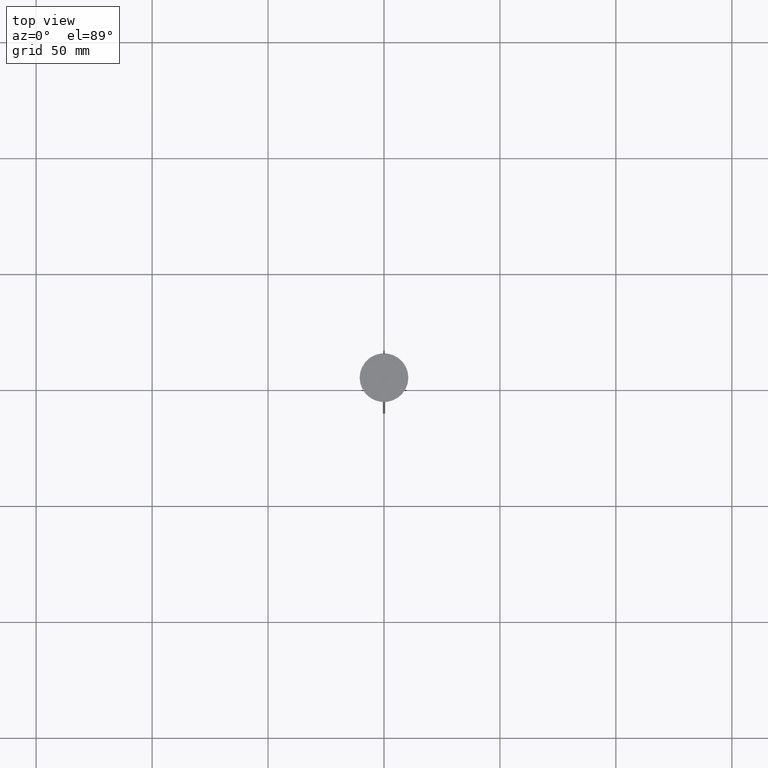
[diagram: clean part render]
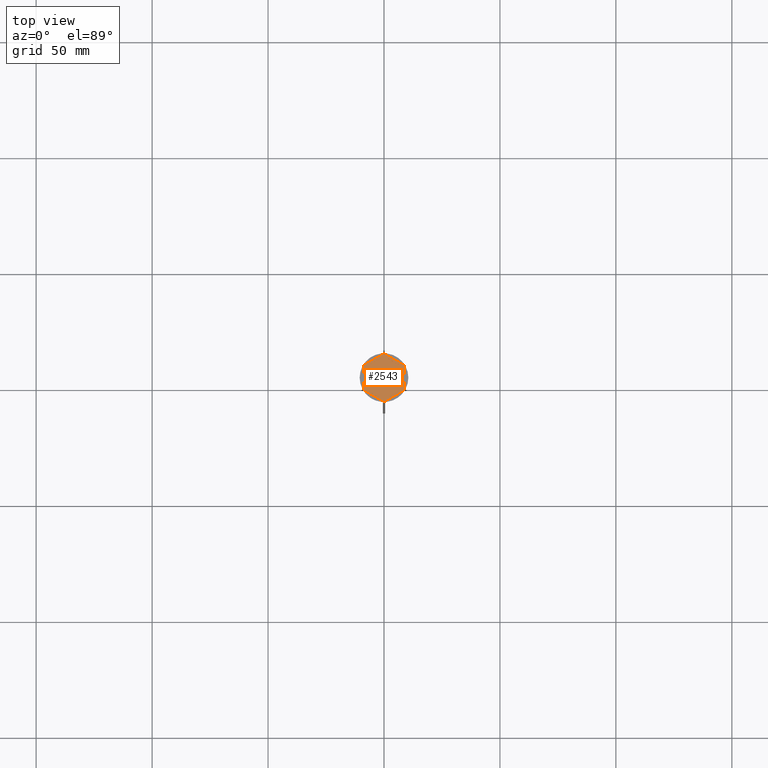
[diagram: same view with one face highlighted and labeled with its STEP entity id]
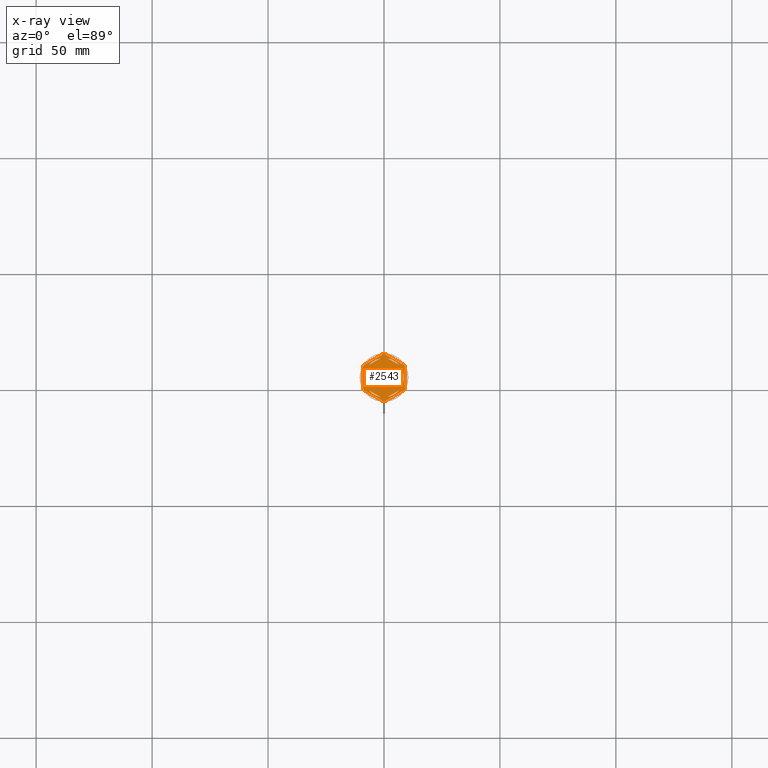
[diagram: x-ray of the same camera — body ghosted, the highlighted face saturated]
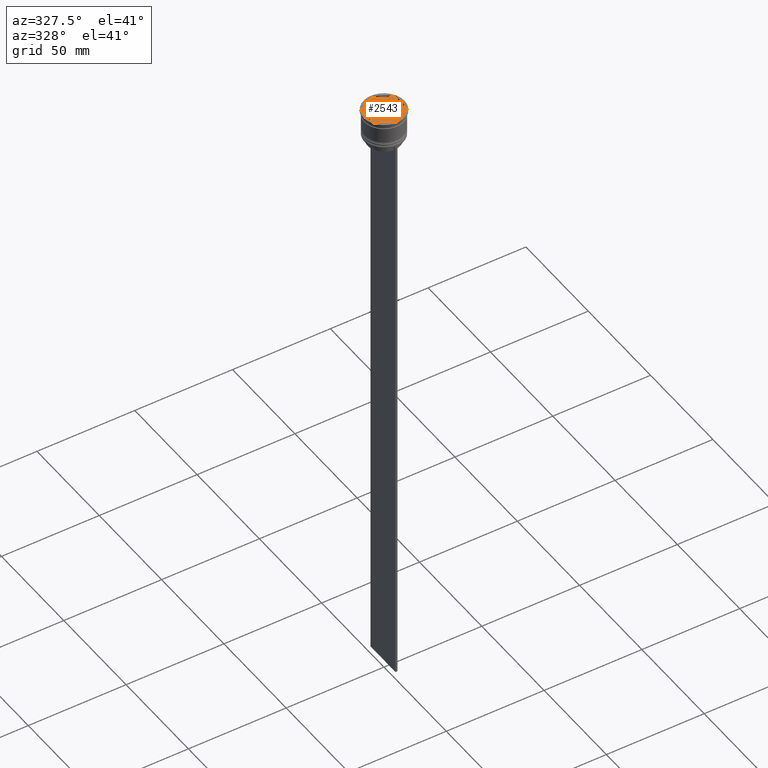
[diagram: same view with one face highlighted and labeled with its STEP entity id]
A machine part, top view. The second image highlights one B-rep face of the part: STEP entity #2543.
The next image is the same camera in x-ray: the body ghosted, the highlighted face saturated — about 0% of this face is hidden behind the body in this view.
A second angle (auxiliary view) of the same face is appended — the face is thin or edge-on in the first view.
In plain terms, the highlighted planar face has unit normal (0, 0, 1).
Its self-contained STEP definition (entity closure, byte-faithful):
#15 = VECTOR ( 'NONE', #155, 1000.000000000000000 ) ;
#35 = FACE_BOUND ( 'NONE', #1117, .T. ) ;
#37 = VERTEX_POINT ( 'NONE', #2377 ) ;
#46 = ORIENTED_EDGE ( 'NONE', *, *, #1420, .F. ) ;
#58 = ORIENTED_EDGE ( 'NONE', *, *, #1595, .T. ) ;
#68 = CARTESIAN_POINT ( 'NONE',  ( -9.000000000000001776, 4.799999999999988276, -1.000000000000000000 ) ) ;
#81 = VERTEX_POINT ( 'NONE', #173 ) ;
#94 = CIRCLE ( 'NONE', #688, 8.500000000000000000 ) ;
#101 = EDGE_CURVE ( 'NONE', #1579, #37, #117, .T. ) ;
#102 = CIRCLE ( 'NONE', #263, 8.500000000000000000 ) ;
#117 = LINE ( 'NONE', #2311, #187 ) ;
#130 = CARTESIAN_POINT ( 'NONE',  ( 8.656921938165297092, -5.394228634059953009, -1.000000000000000000 ) ) ;
#151 = CIRCLE ( 'NONE', #265, 10.19999999999999574 ) ;
#155 = DIRECTION ( 'NONE',  ( -0.8660254037844385966, -0.5000000000000001110, 0.000000000000000000 ) ) ;
#163 = CARTESIAN_POINT ( 'NONE',  ( 0.000000000000000000, 0.000000000000000000, -1.000000000000000000 ) ) ;
#166 = CARTESIAN_POINT ( 'NONE',  ( 0.000000000000000000, 10.39230484541326582, -1.000000000000000000 ) ) ;
#173 = CARTESIAN_POINT ( 'NONE',  ( -6.487468592766552078, -5.492062568641001619, -1.000000000000000888 ) ) ;
#187 = VECTOR ( 'NONE', #227, 1000.000000000000000 ) ;
#194 = CIRCLE ( 'NONE', #1704, 10.19999999999999574 ) ;
#206 = VERTEX_POINT ( 'NONE', #2444 ) ;
#218 = EDGE_CURVE ( 'NONE', #2053, #307, #724, .T. ) ;
#225 = AXIS2_PLACEMENT_3D ( 'NONE', #1634, #248, #2540 ) ;
#227 = DIRECTION ( 'NONE',  ( -1.877893248421449036E-16, -1.000000000000000000, 0.000000000000000000 ) ) ;
#233 = EDGE_CURVE ( 'NONE', #417, #1099, #1114, .T. ) ;
#248 = DIRECTION ( 'NONE',  ( -0.000000000000000000, -0.000000000000000000, -1.000000000000000000 ) ) ;
#263 = AXIS2_PLACEMENT_3D ( 'NONE', #2485, #1453, #2496 ) ;
#265 = AXIS2_PLACEMENT_3D ( 'NONE', #163, #990, #1612 ) ;
#269 = DIRECTION ( 'NONE',  ( -0.8660254037844387076, -0.4999999999999998335, 0.000000000000000000 ) ) ;
#291 = ORIENTED_EDGE ( 'NONE', *, *, #2210, .F. ) ;
#292 = ORIENTED_EDGE ( 'NONE', *, *, #582, .F. ) ;
#298 = CIRCLE ( 'NONE', #1828, 10.19999999999999574 ) ;
#307 = VERTEX_POINT ( 'NONE', #2228 ) ;
#326 = VERTEX_POINT ( 'NONE', #2017 ) ;
#339 = ORIENTED_EDGE ( 'NONE', *, *, #722, .F. ) ;
#340 = CARTESIAN_POINT ( 'NONE',  ( 9.000000000000001776, -5.196152422706632024, -1.000000000000000000 ) ) ;
#344 = DIRECTION ( 'NONE',  ( 1.000000000000000000, 0.000000000000000000, 0.000000000000000000 ) ) ;
#350 = AXIS2_PLACEMENT_3D ( 'NONE', #2464, #626, #2287 ) ;
#355 = EDGE_CURVE ( 'NONE', #1530, #307, #1381, .T. ) ;
#417 = VERTEX_POINT ( 'NONE', #2059 ) ;
#448 = ORIENTED_EDGE ( 'NONE', *, *, #975, .F. ) ;
#464 = DIRECTION ( 'NONE',  ( 0.000000000000000000, 0.000000000000000000, 1.000000000000000000 ) ) ;
#500 = CARTESIAN_POINT ( 'NONE',  ( 0.000000000000000000, 0.000000000000000000, -1.000000000000000000 ) ) ;
#504 = VERTEX_POINT ( 'NONE', #1664 ) ;
#521 = VERTEX_POINT ( 'NONE', #68 ) ;
#530 = DIRECTION ( 'NONE',  ( -0.000000000000000000, -0.000000000000000000, -1.000000000000000000 ) ) ;
#534 = ORIENTED_EDGE ( 'NONE', *, *, #2542, .F. ) ;
#542 = CARTESIAN_POINT ( 'NONE',  ( -8.000000000000000000, -2.872281323269016085, -1.000000000000000888 ) ) ;
#557 = CIRCLE ( 'NONE', #944, 8.500000000000000000 ) ;
#571 = EDGE_CURVE ( 'NONE', #769, #823, #557, .T. ) ;
#582 = EDGE_CURVE ( 'NONE', #2438, #2016, #298, .T. ) ;
#609 = AXIS2_PLACEMENT_3D ( 'NONE', #1452, #1901, #2178 ) ;
#615 = FACE_BOUND ( 'NONE', #1691, .T. ) ;
#617 = ORIENTED_EDGE ( 'NONE', *, *, #218, .F. ) ;
#623 = ORIENTED_EDGE ( 'NONE', *, *, #1320, .F. ) ;
#626 = DIRECTION ( 'NONE',  ( 0.000000000000000000, 0.000000000000000000, 1.000000000000000000 ) ) ;
#643 = VECTOR ( 'NONE', #670, 1000.000000000000000 ) ;
#651 = VECTOR ( 'NONE', #269, 1000.000000000000114 ) ;
#659 = ORIENTED_EDGE ( 'NONE', *, *, #2511, .T. ) ;
#660 = LINE ( 'NONE', #1063, #2222 ) ;
#670 = DIRECTION ( 'NONE',  ( 0.000000000000000000, -1.000000000000000000, 0.000000000000000000 ) ) ;
#688 = AXIS2_PLACEMENT_3D ( 'NONE', #1416, #2020, #1650 ) ;
#696 = VERTEX_POINT ( 'NONE', #1171 ) ;
#701 = LINE ( 'NONE', #2558, #1393 ) ;
#722 = EDGE_CURVE ( 'NONE', #1196, #504, #194, .T. ) ;
#724 = CIRCLE ( 'NONE', #225, 10.19999999999999574 ) ;
#727 = EDGE_CURVE ( 'NONE', #521, #326, #151, .T. ) ;
#740 = CARTESIAN_POINT ( 'NONE',  ( 9.000000000000001776, 5.196152422706632912, -1.000000000000000000 ) ) ;
#769 = VERTEX_POINT ( 'NONE', #1363 ) ;
#781 = ORIENTED_EDGE ( 'NONE', *, *, #571, .F. ) ;
#821 = CIRCLE ( 'NONE', #609, 10.19999999999999574 ) ;
#823 = VERTEX_POINT ( 'NONE', #542 ) ;
#825 = AXIS2_PLACEMENT_3D ( 'NONE', #2112, #2530, #936 ) ;
#836 = CARTESIAN_POINT ( 'NONE',  ( 1.512531407233448366, 8.364343891910017703, -1.000000000000000888 ) ) ;
#847 = ORIENTED_EDGE ( 'NONE', *, *, #1104, .F. ) ;
#860 = VECTOR ( 'NONE', #1336, 1000.000000000000000 ) ;
#911 = CARTESIAN_POINT ( 'NONE',  ( 0.000000000000000000, 0.000000000000000000, -1.000000000000000000 ) ) ;
#929 = CARTESIAN_POINT ( 'NONE',  ( -8.673617379884035472E-16, -9.237604307034013473, -1.000000000000000888 ) ) ;
#936 = DIRECTION ( 'NONE',  ( 1.000000000000000000, 0.000000000000000000, 0.000000000000000000 ) ) ;
#944 = AXIS2_PLACEMENT_3D ( 'NONE', #911, #1501, #1534 ) ;
#962 = DIRECTION ( 'NONE',  ( 0.000000000000000000, 1.000000000000000000, 0.000000000000000000 ) ) ;
#975 = EDGE_CURVE ( 'NONE', #1530, #2545, #821, .T. ) ;
#990 = DIRECTION ( 'NONE',  ( -0.000000000000000000, -0.000000000000000000, -1.000000000000000000 ) ) ;
#1019 = FACE_BOUND ( 'NONE', #2189, .T. ) ;
#1028 = CARTESIAN_POINT ( 'NONE',  ( 0.000000000000000000, 0.000000000000000000, -1.000000000000000000 ) ) ;
#1043 = EDGE_CURVE ( 'NONE', #1755, #2566, #1783, .T. ) ;
#1056 = EDGE_CURVE ( 'NONE', #1768, #206, #2534, .T. ) ;
#1063 = CARTESIAN_POINT ( 'NONE',  ( -9.000000000000001776, -5.196152422706632912, -1.000000000000000000 ) ) ;
#1099 = VERTEX_POINT ( 'NONE', #2399 ) ;
#1104 = EDGE_CURVE ( 'NONE', #696, #81, #2126, .T. ) ;
#1105 = CARTESIAN_POINT ( 'NONE',  ( 0.000000000000000000, 0.000000000000000000, -1.000000000000000000 ) ) ;
#1112 = CIRCLE ( 'NONE', #1708, 8.500000000000000000 ) ;
#1114 = CIRCLE ( 'NONE', #2378, 10.19999999999999574 ) ;
#1116 = VECTOR ( 'NONE', #2173, 1000.000000000000000 ) ;
#1117 = EDGE_LOOP ( 'NONE', ( #46, #2065 ) ) ;
#1143 = DIRECTION ( 'NONE',  ( -0.8660254037844385966, 0.5000000000000000000, 0.000000000000000000 ) ) ;
#1144 = LINE ( 'NONE', #1972, #860 ) ;
#1149 = CARTESIAN_POINT ( 'NONE',  ( 6.487468592766552078, 5.492062568641001619, -1.000000000000000888 ) ) ;
#1169 = CIRCLE ( 'NONE', #350, 8.500000000000000000 ) ;
#1171 = CARTESIAN_POINT ( 'NONE',  ( -1.512531407233448366, -8.364343891910017703, -1.000000000000000888 ) ) ;
#1178 = EDGE_LOOP ( 'NONE', ( #2491, #1224 ) ) ;
#1182 = ORIENTED_EDGE ( 'NONE', *, *, #1043, .F. ) ;
#1196 = VERTEX_POINT ( 'NONE', #1206 ) ;
#1197 = EDGE_CURVE ( 'NONE', #2510, #1811, #94, .T. ) ;
#1206 = CARTESIAN_POINT ( 'NONE',  ( 0.3430780618347059052, -10.19422863405994306, -1.000000000000000000 ) ) ;
#1224 = ORIENTED_EDGE ( 'NONE', *, *, #2314, .F. ) ;
#1276 = CARTESIAN_POINT ( 'NONE',  ( -6.487468592766553854, 5.492062568640999842, -1.000000000000000888 ) ) ;
#1280 = EDGE_CURVE ( 'NONE', #417, #504, #660, .T. ) ;
#1282 = DIRECTION ( 'NONE',  ( 0.8660254037844385966, -0.4999999999999999445, 0.000000000000000000 ) ) ;
#1320 = EDGE_CURVE ( 'NONE', #206, #1768, #1112, .T. ) ;
#1336 = DIRECTION ( 'NONE',  ( 0.8660254037844385966, 0.5000000000000001110, 0.000000000000000000 ) ) ;
#1363 = CARTESIAN_POINT ( 'NONE',  ( -8.500000000000000000, 0.000000000000000000, -1.000000000000000000 ) ) ;
#1370 = CARTESIAN_POINT ( 'NONE',  ( -8.000000000000000000, -4.618802153517006737, -1.000000000000000888 ) ) ;
#1378 = EDGE_CURVE ( 'NONE', #521, #1099, #2074, .T. ) ;
#1381 = LINE ( 'NONE', #740, #1603 ) ;
#1382 = LINE ( 'NONE', #166, #15 ) ;
#1392 = CARTESIAN_POINT ( 'NONE',  ( 9.000000000000001776, -4.799999999999988276, -1.000000000000000000 ) ) ;
#1393 = VECTOR ( 'NONE', #1282, 1000.000000000000114 ) ;
#1407 = ORIENTED_EDGE ( 'NONE', *, *, #727, .F. ) ;
#1416 = CARTESIAN_POINT ( 'NONE',  ( 0.000000000000000000, 0.000000000000000000, -1.000000000000000000 ) ) ;
#1420 = EDGE_CURVE ( 'NONE', #37, #1579, #2009, .T. ) ;
#1452 = CARTESIAN_POINT ( 'NONE',  ( 0.000000000000000000, 0.000000000000000000, -1.000000000000000000 ) ) ;
#1453 = DIRECTION ( 'NONE',  ( 0.000000000000000000, 0.000000000000000000, 1.000000000000000000 ) ) ;
#1458 = EDGE_CURVE ( 'NONE', #1196, #2016, #1144, .T. ) ;
#1490 = DIRECTION ( 'NONE',  ( -0.8660254037844385966, 0.4999999999999999445, 0.000000000000000000 ) ) ;
#1495 = EDGE_CURVE ( 'NONE', #823, #2486, #1753, .T. ) ;
#1501 = DIRECTION ( 'NONE',  ( 0.000000000000000000, 0.000000000000000000, 1.000000000000000000 ) ) ;
#1516 = CARTESIAN_POINT ( 'NONE',  ( -8.000000000000000000, 4.618802153517004072, -1.000000000000000888 ) ) ;
#1530 = VERTEX_POINT ( 'NONE', #1778 ) ;
#1534 = DIRECTION ( 'NONE',  ( 1.000000000000000000, 0.000000000000000000, 0.000000000000000000 ) ) ;
#1579 = VERTEX_POINT ( 'NONE', #2018 ) ;
#1595 = EDGE_CURVE ( 'NONE', #2053, #326, #1382, .T. ) ;
#1603 = VECTOR ( 'NONE', #1143, 1000.000000000000227 ) ;
#1604 = ORIENTED_EDGE ( 'NONE', *, *, #355, .T. ) ;
#1609 = VECTOR ( 'NONE', #962, 1000.000000000000000 ) ;
#1610 = VECTOR ( 'NONE', #1490, 1000.000000000000114 ) ;
#1612 = DIRECTION ( 'NONE',  ( 1.000000000000000000, 0.000000000000000000, 0.000000000000000000 ) ) ;
#1624 = ORIENTED_EDGE ( 'NONE', *, *, #1280, .T. ) ;
#1632 = CARTESIAN_POINT ( 'NONE',  ( -0.3430780618347059052, 10.19422863405994306, -1.000000000000000000 ) ) ;
#1634 = CARTESIAN_POINT ( 'NONE',  ( 0.000000000000000000, 0.000000000000000000, -1.000000000000000000 ) ) ;
#1641 = CARTESIAN_POINT ( 'NONE',  ( 1.512531407233452363, -8.364343891910017703, -1.000000000000000888 ) ) ;
#1648 = CARTESIAN_POINT ( 'NONE',  ( 6.487468592766547637, -5.492062568641006060, -1.000000000000000888 ) ) ;
#1650 = DIRECTION ( 'NONE',  ( 1.000000000000000000, 0.000000000000000000, 0.000000000000000000 ) ) ;
#1664 = CARTESIAN_POINT ( 'NONE',  ( -0.3430780618347024080, -10.19422863405994306, -1.000000000000000000 ) ) ;
#1677 = EDGE_LOOP ( 'NONE', ( #659, #448, #1604, #617, #58, #1407, #1738, #1726, #1624, #339, #2549, #292 ) ) ;
#1681 = FACE_OUTER_BOUND ( 'NONE', #1677, .T. ) ;
#1691 = EDGE_LOOP ( 'NONE', ( #1706, #847 ) ) ;
#1704 = AXIS2_PLACEMENT_3D ( 'NONE', #1994, #530, #344 ) ;
#1706 = ORIENTED_EDGE ( 'NONE', *, *, #2560, .F. ) ;
#1708 = AXIS2_PLACEMENT_3D ( 'NONE', #1898, #464, #1921 ) ;
#1726 = ORIENTED_EDGE ( 'NONE', *, *, #233, .F. ) ;
#1738 = ORIENTED_EDGE ( 'NONE', *, *, #1378, .T. ) ;
#1743 = CIRCLE ( 'NONE', #1785, 8.500000000000000000 ) ;
#1753 = LINE ( 'NONE', #1516, #1116 ) ;
#1755 = VERTEX_POINT ( 'NONE', #1648 ) ;
#1768 = VERTEX_POINT ( 'NONE', #1276 ) ;
#1778 = CARTESIAN_POINT ( 'NONE',  ( 8.656921938165297092, 5.394228634059953897, -1.000000000000000000 ) ) ;
#1783 = LINE ( 'NONE', #929, #651 ) ;
#1785 = AXIS2_PLACEMENT_3D ( 'NONE', #2066, #2075, #2482 ) ;
#1811 = VERTEX_POINT ( 'NONE', #836 ) ;
#1828 = AXIS2_PLACEMENT_3D ( 'NONE', #500, #2142, #2331 ) ;
#1885 = CARTESIAN_POINT ( 'NONE',  ( -9.000000000000001776, 5.196152422706632024, -1.000000000000000000 ) ) ;
#1898 = CARTESIAN_POINT ( 'NONE',  ( 0.000000000000000000, 0.000000000000000000, -1.000000000000000000 ) ) ;
#1901 = DIRECTION ( 'NONE',  ( -0.000000000000000000, -0.000000000000000000, -1.000000000000000000 ) ) ;
#1919 = ORIENTED_EDGE ( 'NONE', *, *, #1495, .F. ) ;
#1921 = DIRECTION ( 'NONE',  ( 1.000000000000000000, 0.000000000000000000, 0.000000000000000000 ) ) ;
#1972 = CARTESIAN_POINT ( 'NONE',  ( 2.607697573705103160E-15, -10.39230484541326405, -1.000000000000000000 ) ) ;
#1974 = CARTESIAN_POINT ( 'NONE',  ( 8.673617379884035472E-16, 9.237604307034013473, -1.000000000000000888 ) ) ;
#1994 = CARTESIAN_POINT ( 'NONE',  ( 0.000000000000000000, 0.000000000000000000, -1.000000000000000000 ) ) ;
#2009 = CIRCLE ( 'NONE', #825, 8.500000000000000000 ) ;
#2016 = VERTEX_POINT ( 'NONE', #130 ) ;
#2017 = CARTESIAN_POINT ( 'NONE',  ( -8.656921938165297092, 5.394228634059953009, -1.000000000000000000 ) ) ;
#2018 = CARTESIAN_POINT ( 'NONE',  ( 8.000000000000000000, 2.872281323269014752, -1.000000000000000888 ) ) ;
#2020 = DIRECTION ( 'NONE',  ( 0.000000000000000000, 0.000000000000000000, 1.000000000000000000 ) ) ;
#2053 = VERTEX_POINT ( 'NONE', #1632 ) ;
#2059 = CARTESIAN_POINT ( 'NONE',  ( -8.656921938165295316, -5.394228634059957450, -1.000000000000000000 ) ) ;
#2065 = ORIENTED_EDGE ( 'NONE', *, *, #101, .F. ) ;
#2066 = CARTESIAN_POINT ( 'NONE',  ( 0.000000000000000000, 0.000000000000000000, -1.000000000000000000 ) ) ;
#2074 = LINE ( 'NONE', #1885, #643 ) ;
#2075 = DIRECTION ( 'NONE',  ( 0.000000000000000000, 0.000000000000000000, 1.000000000000000000 ) ) ;
#2105 = FACE_BOUND ( 'NONE', #1178, .T. ) ;
#2112 = CARTESIAN_POINT ( 'NONE',  ( 0.000000000000000000, 0.000000000000000000, -1.000000000000000000 ) ) ;
#2126 = LINE ( 'NONE', #1370, #1610 ) ;
#2131 = AXIS2_PLACEMENT_3D ( 'NONE', #1028, #2505, #2300 ) ;
#2142 = DIRECTION ( 'NONE',  ( -0.000000000000000000, -0.000000000000000000, -1.000000000000000000 ) ) ;
#2149 = DIRECTION ( 'NONE',  ( 1.000000000000000000, 0.000000000000000000, 0.000000000000000000 ) ) ;
#2173 = DIRECTION ( 'NONE',  ( 0.000000000000000000, 1.000000000000000000, 0.000000000000000000 ) ) ;
#2178 = DIRECTION ( 'NONE',  ( 1.000000000000000000, 0.000000000000000000, 0.000000000000000000 ) ) ;
#2189 = EDGE_LOOP ( 'NONE', ( #623, #2630 ) ) ;
#2210 = EDGE_CURVE ( 'NONE', #2486, #769, #102, .T. ) ;
#2222 = VECTOR ( 'NONE', #2296, 1000.000000000000114 ) ;
#2228 = CARTESIAN_POINT ( 'NONE',  ( 0.3430780618347050170, 10.19422863405994306, -1.000000000000000000 ) ) ;
#2267 = CARTESIAN_POINT ( 'NONE',  ( 9.000000000000001776, 4.799999999999988276, -1.000000000000000000 ) ) ;
#2278 = FACE_BOUND ( 'NONE', #2429, .T. ) ;
#2287 = DIRECTION ( 'NONE',  ( 1.000000000000000000, 0.000000000000000000, 0.000000000000000000 ) ) ;
#2296 = DIRECTION ( 'NONE',  ( 0.8660254037844387076, -0.4999999999999997224, 0.000000000000000000 ) ) ;
#2300 = DIRECTION ( 'NONE',  ( 1.000000000000000000, 0.000000000000000000, -0.000000000000000000 ) ) ;
#2311 = CARTESIAN_POINT ( 'NONE',  ( 7.999999999999998224, -4.618802153517008513, -1.000000000000000888 ) ) ;
#2314 = EDGE_CURVE ( 'NONE', #1811, #2510, #701, .T. ) ;
#2331 = DIRECTION ( 'NONE',  ( 1.000000000000000000, 8.881784197001252323E-16, 0.000000000000000000 ) ) ;
#2375 = CARTESIAN_POINT ( 'NONE',  ( -8.000000000000000000, 2.872281323269016085, -1.000000000000000888 ) ) ;
#2377 = CARTESIAN_POINT ( 'NONE',  ( 8.000000000000000000, -2.872281323269017417, -1.000000000000000888 ) ) ;
#2378 = AXIS2_PLACEMENT_3D ( 'NONE', #1105, #2557, #2149 ) ;
#2399 = CARTESIAN_POINT ( 'NONE',  ( -9.000000000000001776, -4.799999999999988276, -1.000000000000000000 ) ) ;
#2427 = VECTOR ( 'NONE', #2594, 1000.000000000000114 ) ;
#2429 = EDGE_LOOP ( 'NONE', ( #534, #1182 ) ) ;
#2438 = VERTEX_POINT ( 'NONE', #1392 ) ;
#2444 = CARTESIAN_POINT ( 'NONE',  ( -1.512531407233451475, 8.364343891910017703, -1.000000000000000888 ) ) ;
#2446 = PLANE ( 'NONE',  #2131 ) ;
#2453 = EDGE_LOOP ( 'NONE', ( #291, #1919, #781 ) ) ;
#2464 = CARTESIAN_POINT ( 'NONE',  ( 0.000000000000000000, 0.000000000000000000, -1.000000000000000000 ) ) ;
#2482 = DIRECTION ( 'NONE',  ( 1.000000000000000000, 0.000000000000000000, 0.000000000000000000 ) ) ;
#2485 = CARTESIAN_POINT ( 'NONE',  ( 0.000000000000000000, 0.000000000000000000, -1.000000000000000000 ) ) ;
#2486 = VERTEX_POINT ( 'NONE', #2375 ) ;
#2491 = ORIENTED_EDGE ( 'NONE', *, *, #1197, .F. ) ;
#2493 = FACE_BOUND ( 'NONE', #2453, .T. ) ;
#2496 = DIRECTION ( 'NONE',  ( 1.000000000000000000, 0.000000000000000000, 0.000000000000000000 ) ) ;
#2505 = DIRECTION ( 'NONE',  ( 0.000000000000000000, 0.000000000000000000, 1.000000000000000000 ) ) ;
#2510 = VERTEX_POINT ( 'NONE', #1149 ) ;
#2511 = EDGE_CURVE ( 'NONE', #2438, #2545, #2621, .T. ) ;
#2530 = DIRECTION ( 'NONE',  ( 0.000000000000000000, 0.000000000000000000, 1.000000000000000000 ) ) ;
#2534 = LINE ( 'NONE', #1974, #2427 ) ;
#2540 = DIRECTION ( 'NONE',  ( 1.000000000000000000, 1.598721155460225418E-14, 0.000000000000000000 ) ) ;
#2542 = EDGE_CURVE ( 'NONE', #2566, #1755, #1743, .T. ) ;
#2543 = ADVANCED_FACE ( 'NONE', ( #2105, #35, #2278, #615, #2493, #1019, #1681 ), #2446, .T. ) ;
#2545 = VERTEX_POINT ( 'NONE', #2267 ) ;
#2549 = ORIENTED_EDGE ( 'NONE', *, *, #1458, .T. ) ;
#2557 = DIRECTION ( 'NONE',  ( -0.000000000000000000, -0.000000000000000000, -1.000000000000000000 ) ) ;
#2558 = CARTESIAN_POINT ( 'NONE',  ( 8.000000000000000000, 4.618802153517006737, -1.000000000000000888 ) ) ;
#2560 = EDGE_CURVE ( 'NONE', #81, #696, #1169, .T. ) ;
#2566 = VERTEX_POINT ( 'NONE', #1641 ) ;
#2594 = DIRECTION ( 'NONE',  ( 0.8660254037844384856, 0.5000000000000003331, -0.000000000000000000 ) ) ;
#2621 = LINE ( 'NONE', #340, #1609 ) ;
#2630 = ORIENTED_EDGE ( 'NONE', *, *, #1056, .F. ) ;